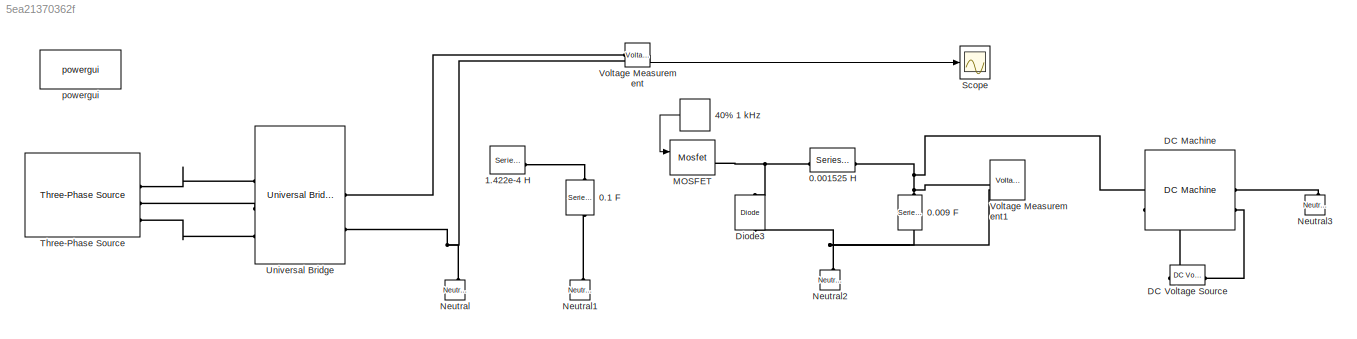
MODEL slx_5ea21370362f
KIND model
CONFIG AbsTol = auto
CONFIG EnableMultiTasking = off
CONFIG FixedStep = auto
CONFIG MaxStep = auto
CONFIG MinStep = auto
CONFIG RelTol = 1e-3
CONFIG SampleTimeConstraint = Unconstrained
CONFIG SolverName = VariableStepAuto
CONFIG StartTime = 0.0
CONFIG StopTime = 0.04
BLOCK [Reference] 0.001525 H  REF=spsSeriesRLCBranchLib/Series RLC Branch
  SourceBlock = spsSeriesRLCBranchLib/Series RLC Branch
  SourceType = Series RLC Branch
BLOCK [Reference] 0.009 F  REF=spsSeriesRLCBranchLib/Series RLC Branch
  NameLocation = right
  SourceBlock = spsSeriesRLCBranchLib/Series RLC Branch
  SourceType = Series RLC Branch
BLOCK [Reference] 0.1 F  REF=spsSeriesRLCBranchLib/Series RLC Branch
  LibrarySourceBlock = sps_lib/Passives/Series RLC Branch
  NameLocation = left
  SourceBlock = spsSeriesRLCBranchLib/Series RLC Branch
  SourceType = Series RLC Branch
BLOCK [Reference] 1.422e-4 H  REF=spsSeriesRLCBranchLib/Series RLC Branch
  LibrarySourceBlock = sps_lib/Passives/Series RLC Branch
  SourceBlock = spsSeriesRLCBranchLib/Series RLC Branch
  SourceType = Series RLC Branch
BLOCK [DiscretePulseGenerator] 40% 1 kHz
  NameLocation = top
  Period = 1/1000
  PulseType = Time based
  PulseWidth = 34
BLOCK [Reference] DC Machine  REF=spsDCMachineLib/DC Machine
  LibrarySourceBlock = sps_lib/Electrical Machines/DC Machine
  SourceBlock = spsDCMachineLib/DC Machine
  SourceType = DC machine
BLOCK [Reference] DC Voltage Source  REF=spsDCVoltageSourceLib/DC Voltage Source
  LibrarySourceBlock = sps_lib/Sources/DC Voltage Source
  NameLocation = right
  SourceBlock = spsDCVoltageSourceLib/DC Voltage Source
  SourceType = DC Voltage Source
BLOCK [Reference] Diode3  REF=spsDiodeLib/Diode
  NameLocation = right
  SourceBlock = spsDiodeLib/Diode
  SourceType = Diode
BLOCK [Reference] MOSFET  REF=spsMosfetLib/Mosfet
  SourceBlock = spsMosfetLib/Mosfet
  SourceType = Mosfet
BLOCK [Reference] Neutral  REF=spsNeutralLib/Neutral
  AttributesFormatString = node %<NodeNumber>
  LibrarySourceBlock = sps_lib/Utilities/Neutral
  NameLocation = right
  SourceBlock = spsNeutralLib/Neutral
  SourceType = Neutral
BLOCK [Reference] Neutral1  REF=spsNeutralLib/Neutral
  AttributesFormatString = node %<NodeNumber>
  LibrarySourceBlock = sps_lib/Utilities/Neutral
  NameLocation = right
  SourceBlock = spsNeutralLib/Neutral
  SourceType = Neutral
BLOCK [Reference] Neutral2  REF=spsNeutralLib/Neutral
  AttributesFormatString = node %<NodeNumber>
  NameLocation = right
  SourceBlock = spsNeutralLib/Neutral
  SourceType = Neutral
BLOCK [Reference] Neutral3  REF=spsNeutralLib/Neutral
  AttributesFormatString = node %<NodeNumber>
  NameLocation = right
  SourceBlock = spsNeutralLib/Neutral
  SourceType = Neutral
BLOCK [Scope] Scope
  Floating = off
  NumInputPorts = 2
  ScopeSpecificationString = Simulink.scopes.TimeScopeBlockCfg('CurrentConfiguration', extmgr.ConfigurationSet(extmgr.Configuration('Core','General UI',true),extmgr.Configuration('Core','Source UI',true),extmgr.Configuration('Sources','WiredSimulink',true),extmgr.Configuration('Visuals','Time Domain',true,'SerializedDisplays',{struct('MinYLimReal','-70.70791','MaxYLimReal','636.37121','YLabelReal','','MinYLimMag','0.00000','M...<+1870ch>
BLOCK [Reference] Three-Phase Source  REF=spsThreePhaseSourceLib/Three-Phase Source
  LibrarySourceBlock = sps_lib/Sources/Three-Phase Source
  SourceBlock = spsThreePhaseSourceLib/Three-Phase Source
  SourceType = Three-Phase Source
BLOCK [Reference] Universal Bridge  REF=spsUniversalBridgeLib/Universal Bridge
  LibrarySourceBlock = sps_lib/Power Electronics/Universal Bridge
  SourceBlock = spsUniversalBridgeLib/Universal Bridge
  SourceType = Universal Bridge
BLOCK [Reference] Voltage Measurement  REF=spsVoltageMeasurementLib/Voltage Measurement
  LibrarySourceBlock = sps_lib/Sensors and Measurements/Voltage Measurement
  SourceBlock = spsVoltageMeasurementLib/Voltage Measurement
  SourceType = Voltage Measurement
  UserDataPersistent = on
BLOCK [Reference] Voltage Measurement1  REF=spsVoltageMeasurementLib/Voltage Measurement
  LibrarySourceBlock = sps_lib/Sensors and Measurements/Voltage Measurement
  SourceBlock = spsVoltageMeasurementLib/Voltage Measurement
  SourceType = Voltage Measurement
  UserDataPersistent = on
BLOCK [Reference] powergui  REF=sps_lib/powergui
  LibrarySourceBlock = sps_lib/powergui
  Priority = 1
  SourceBlock = sps_lib/powergui
  SourceType = PSB option menu block
LINE 40% 1 kHz:1 -> MOSFET:1
LINE Voltage Measurement:1 -> Scope:1
PNET net1: 0.001525 H:LConn1 -- Diode3:RConn1 -- MOSFET:RConn1
PNET net2: 0.001525 H:RConn1 -- 0.009 F:LConn1 -- DC Machine:LConn1 -- Voltage Measurement1:LConn1
PNET net3: 0.009 F:RConn1 -- Diode3:LConn1 -- Neutral2:LConn1 -- Voltage Measurement1:LConn2
PLINE 0.1 F:LConn1 -- 1.422e-4 H:RConn1
PLINE 0.1 F:RConn1 -- Neutral1:LConn1
PLINE DC Machine:LConn2 -- DC Voltage Source:RConn1
PLINE DC Machine:RConn1 -- Neutral3:LConn1
PLINE DC Machine:RConn2 -- DC Voltage Source:LConn1
PNET net4: Neutral:LConn1 -- Universal Bridge:RConn2 -- Voltage Measurement:LConn2
PLINE Three-Phase Source:RConn1 -- Universal Bridge:LConn1
PLINE Three-Phase Source:RConn2 -- Universal Bridge:LConn2
PLINE Three-Phase Source:RConn3 -- Universal Bridge:LConn3
PLINE Universal Bridge:RConn1 -- Voltage Measurement:LConn1
note: PNET lines group multi-terminal physical nets as a canonical sorted terminal list (undirected conserving connections); 2-terminal nets keep the pairwise PLINE form
